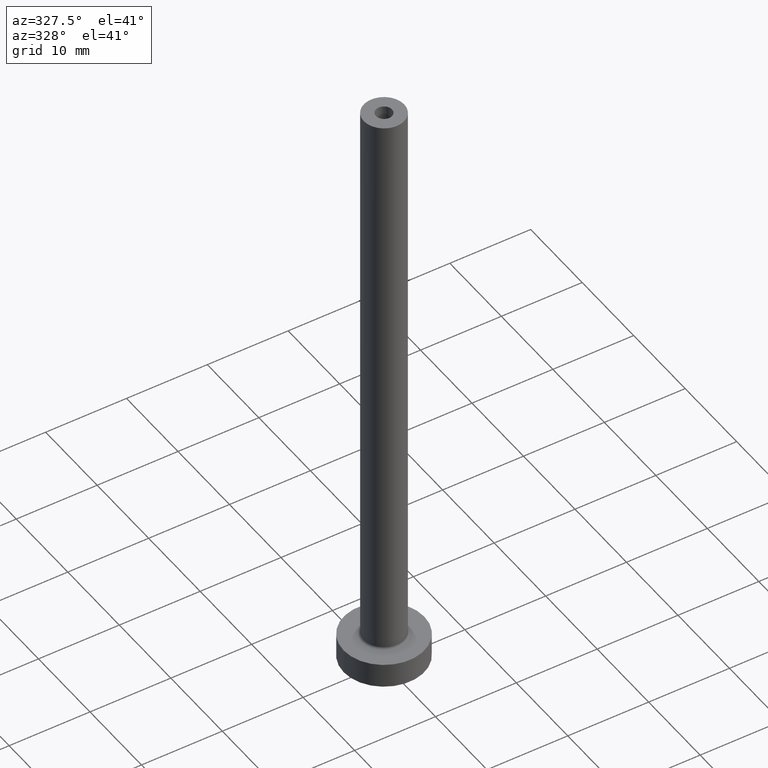
[diagram: clean part render]
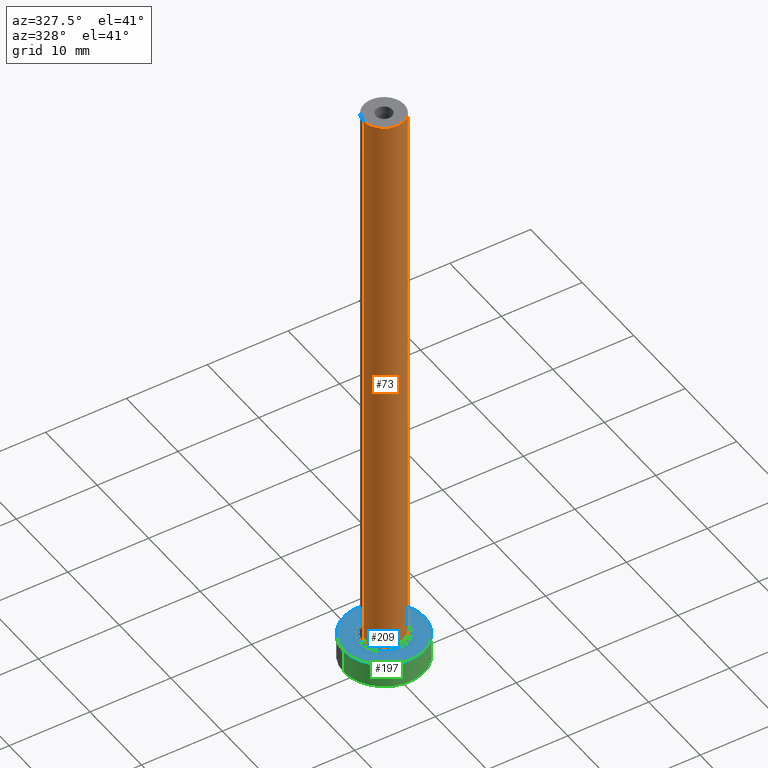
[diagram: same view with three faces highlighted in distinct colors, each labeled with its STEP entity id]
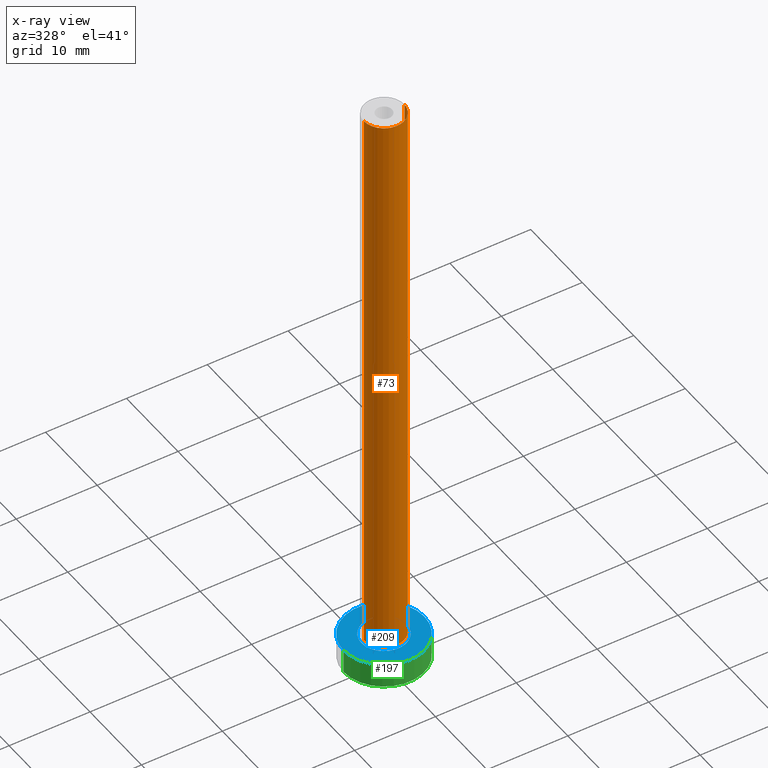
[diagram: x-ray of the same camera — body ghosted, the three highlighted faces saturated]
A machine part, auxiliary view with three faces highlighted in distinct colors.
The next image is the same camera in x-ray (body ghosted, the three faces saturated) — at least one of them is partly hidden behind the body in this view.
Their STEP definitions:

[orange] entity #73 — the highlighted cylindrical surface (edge-blend (fillet) strip) has radius 2.5 mm, axis along (-0, -0, -1).
#6 = CARTESIAN_POINT ( 'NONE',  ( -2.500000000000000000, 0.000000000000000000, 3.299999999999997158 ) ) ;
#7 = VERTEX_POINT ( 'NONE', #435 ) ;
#15 = VERTEX_POINT ( 'NONE', #6 ) ;
#28 = AXIS2_PLACEMENT_3D ( 'NONE', #404, #204, #441 ) ;
#38 = CARTESIAN_POINT ( 'NONE',  ( -2.500000000000000000, 0.000000000000000000, 75.00000000000001421 ) ) ;
#39 = EDGE_CURVE ( 'NONE', #15, #352, #349, .T. ) ;
#44 = VERTEX_POINT ( 'NONE', #443 ) ;
#73 = ADVANCED_FACE ( 'NONE', ( #282 ), #201, .T. ) ;
#74 = CIRCLE ( 'NONE', #28, 2.500000000000000000 ) ;
#82 = AXIS2_PLACEMENT_3D ( 'NONE', #261, #312, #308 ) ;
#101 = DIRECTION ( 'NONE',  ( -0.000000000000000000, -0.000000000000000000, -1.000000000000000000 ) ) ;
#109 = ORIENTED_EDGE ( 'NONE', *, *, #296, .T. ) ;
#131 = LINE ( 'NONE', #406, #331 ) ;
#144 = EDGE_CURVE ( 'NONE', #44, #7, #74, .T. ) ;
#155 = EDGE_LOOP ( 'NONE', ( #195, #330, #109, #215 ) ) ;
#176 = EDGE_CURVE ( 'NONE', #7, #352, #131, .T. ) ;
#195 = ORIENTED_EDGE ( 'NONE', *, *, #176, .F. ) ;
#201 = CYLINDRICAL_SURFACE ( 'NONE', #340, 2.500000000000000000 ) ;
#204 = DIRECTION ( 'NONE',  ( 0.000000000000000000, 0.000000000000000000, 1.000000000000000000 ) ) ;
#215 = ORIENTED_EDGE ( 'NONE', *, *, #39, .T. ) ;
#246 = DIRECTION ( 'NONE',  ( -1.000000000000000000, 0.000000000000000000, 0.000000000000000000 ) ) ;
#261 = CARTESIAN_POINT ( 'NONE',  ( 0.000000000000000000, 0.000000000000000000, 3.299999999999997158 ) ) ;
#282 = FACE_OUTER_BOUND ( 'NONE', #155, .T. ) ;
#283 = DIRECTION ( 'NONE',  ( -0.000000000000000000, -0.000000000000000000, -1.000000000000000000 ) ) ;
#296 = EDGE_CURVE ( 'NONE', #44, #15, #358, .T. ) ;
#308 = DIRECTION ( 'NONE',  ( 1.000000000000000000, 0.000000000000000000, 0.000000000000000000 ) ) ;
#312 = DIRECTION ( 'NONE',  ( 0.000000000000000000, 0.000000000000000000, 1.000000000000000000 ) ) ;
#326 = CARTESIAN_POINT ( 'NONE',  ( 2.500000000000000000, 3.061616997868383141E-16, 3.299999999999997158 ) ) ;
#330 = ORIENTED_EDGE ( 'NONE', *, *, #144, .F. ) ;
#331 = VECTOR ( 'NONE', #457, 1000.000000000000000 ) ;
#340 = AXIS2_PLACEMENT_3D ( 'NONE', #416, #101, #246 ) ;
#349 = CIRCLE ( 'NONE', #82, 2.500000000000000000 ) ;
#352 = VERTEX_POINT ( 'NONE', #326 ) ;
#358 = LINE ( 'NONE', #38, #414 ) ;
#404 = CARTESIAN_POINT ( 'NONE',  ( 0.000000000000000000, 0.000000000000000000, 75.00000000000001421 ) ) ;
#406 = CARTESIAN_POINT ( 'NONE',  ( 2.500000000000000000, 3.061616997868383141E-16, 75.00000000000001421 ) ) ;
#414 = VECTOR ( 'NONE', #283, 1000.000000000000000 ) ;
#416 = CARTESIAN_POINT ( 'NONE',  ( 0.000000000000000000, 0.000000000000000000, 75.00000000000001421 ) ) ;
#435 = CARTESIAN_POINT ( 'NONE',  ( 2.500000000000000000, 3.061616997868383141E-16, 75.00000000000001421 ) ) ;
#441 = DIRECTION ( 'NONE',  ( 1.000000000000000000, 0.000000000000000000, 0.000000000000000000 ) ) ;
#443 = CARTESIAN_POINT ( 'NONE',  ( -2.500000000000000000, 0.000000000000000000, 75.00000000000001421 ) ) ;
#457 = DIRECTION ( 'NONE',  ( -0.000000000000000000, -0.000000000000000000, -1.000000000000000000 ) ) ;

[blue] entity #209 — the highlighted planar face has unit normal (0, 0, 1).
#4 = CARTESIAN_POINT ( 'NONE',  ( 0.000000000000000000, 0.000000000000000000, 3.000000000000000000 ) ) ;
#8 = DIRECTION ( 'NONE',  ( -0.000000000000000000, -0.000000000000000000, -1.000000000000000000 ) ) ;
#14 = ORIENTED_EDGE ( 'NONE', *, *, #30, .T. ) ;
#30 = EDGE_CURVE ( 'NONE', #228, #45, #106, .T. ) ;
#34 = ORIENTED_EDGE ( 'NONE', *, *, #375, .T. ) ;
#37 = FACE_BOUND ( 'NONE', #365, .T. ) ;
#45 = VERTEX_POINT ( 'NONE', #409 ) ;
#46 = EDGE_LOOP ( 'NONE', ( #14, #34 ) ) ;
#48 = AXIS2_PLACEMENT_3D ( 'NONE', #71, #249, #354 ) ;
#71 = CARTESIAN_POINT ( 'NONE',  ( 0.000000000000000000, 0.000000000000000000, 3.000000000000000000 ) ) ;
#84 = DIRECTION ( 'NONE',  ( 1.000000000000000000, 0.000000000000000000, 0.000000000000000000 ) ) ;
#106 = CIRCLE ( 'NONE', #227, 5.000000000000000000 ) ;
#107 = CARTESIAN_POINT ( 'NONE',  ( 0.000000000000000000, 0.000000000000000000, 3.000000000000000000 ) ) ;
#117 = DIRECTION ( 'NONE',  ( 1.000000000000000000, 0.000000000000000000, 0.000000000000000000 ) ) ;
#119 = DIRECTION ( 'NONE',  ( 1.000000000000000000, 0.000000000000000000, 0.000000000000000000 ) ) ;
#137 = CIRCLE ( 'NONE', #447, 2.799999999999999822 ) ;
#153 = CARTESIAN_POINT ( 'NONE',  ( 0.000000000000000000, 0.000000000000000000, 3.000000000000000000 ) ) ;
#172 = CIRCLE ( 'NONE', #363, 2.799999999999999822 ) ;
#182 = DIRECTION ( 'NONE',  ( -0.000000000000000000, -0.000000000000000000, -1.000000000000000000 ) ) ;
#192 = EDGE_CURVE ( 'NONE', #301, #303, #137, .T. ) ;
#209 = ADVANCED_FACE ( 'NONE', ( #37, #419 ), #216, .T. ) ;
#216 = PLANE ( 'NONE',  #48 ) ;
#220 = AXIS2_PLACEMENT_3D ( 'NONE', #395, #360, #84 ) ;
#227 = AXIS2_PLACEMENT_3D ( 'NONE', #153, #295, #117 ) ;
#228 = VERTEX_POINT ( 'NONE', #287 ) ;
#249 = DIRECTION ( 'NONE',  ( 0.000000000000000000, 0.000000000000000000, 1.000000000000000000 ) ) ;
#254 = ORIENTED_EDGE ( 'NONE', *, *, #359, .T. ) ;
#269 = ORIENTED_EDGE ( 'NONE', *, *, #192, .T. ) ;
#287 = CARTESIAN_POINT ( 'NONE',  ( -5.000000000000000000, 0.000000000000000000, 3.000000000000000000 ) ) ;
#288 = DIRECTION ( 'NONE',  ( 1.000000000000000000, 0.000000000000000000, 0.000000000000000000 ) ) ;
#295 = DIRECTION ( 'NONE',  ( 0.000000000000000000, 0.000000000000000000, 1.000000000000000000 ) ) ;
#301 = VERTEX_POINT ( 'NONE', #316 ) ;
#303 = VERTEX_POINT ( 'NONE', #452 ) ;
#316 = CARTESIAN_POINT ( 'NONE',  ( -2.799999999999999822, 3.429011037612589276E-16, 2.999999999999998668 ) ) ;
#354 = DIRECTION ( 'NONE',  ( 1.000000000000000000, 0.000000000000000000, -0.000000000000000000 ) ) ;
#359 = EDGE_CURVE ( 'NONE', #303, #301, #172, .T. ) ;
#360 = DIRECTION ( 'NONE',  ( 0.000000000000000000, 0.000000000000000000, 1.000000000000000000 ) ) ;
#363 = AXIS2_PLACEMENT_3D ( 'NONE', #4, #8, #119 ) ;
#365 = EDGE_LOOP ( 'NONE', ( #254, #269 ) ) ;
#375 = EDGE_CURVE ( 'NONE', #45, #228, #405, .T. ) ;
#395 = CARTESIAN_POINT ( 'NONE',  ( 0.000000000000000000, 0.000000000000000000, 3.000000000000000000 ) ) ;
#405 = CIRCLE ( 'NONE', #220, 5.000000000000000000 ) ;
#409 = CARTESIAN_POINT ( 'NONE',  ( 5.000000000000000000, 6.123233995736766282E-16, 3.000000000000000000 ) ) ;
#419 = FACE_OUTER_BOUND ( 'NONE', #46, .T. ) ;
#447 = AXIS2_PLACEMENT_3D ( 'NONE', #107, #182, #288 ) ;
#452 = CARTESIAN_POINT ( 'NONE',  ( 2.799999999999999822, 0.000000000000000000, 2.999999999999998668 ) ) ;

[green] entity #197 — the highlighted cylindrical surface (partial cylindrical patch) has radius 5 mm, axis along (-0, -0, -1).
#9 = VERTEX_POINT ( 'NONE', #10 ) ;
#10 = CARTESIAN_POINT ( 'NONE',  ( 5.000000000000000000, 6.123233995736766282E-16, 0.000000000000000000 ) ) ;
#30 = EDGE_CURVE ( 'NONE', #228, #45, #106, .T. ) ;
#33 = CARTESIAN_POINT ( 'NONE',  ( 0.000000000000000000, 0.000000000000000000, 3.000000000000000000 ) ) ;
#43 = CARTESIAN_POINT ( 'NONE',  ( -5.000000000000000000, 0.000000000000000000, 0.000000000000000000 ) ) ;
#45 = VERTEX_POINT ( 'NONE', #409 ) ;
#67 = AXIS2_PLACEMENT_3D ( 'NONE', #188, #294, #291 ) ;
#79 = EDGE_CURVE ( 'NONE', #228, #391, #314, .T. ) ;
#87 = ORIENTED_EDGE ( 'NONE', *, *, #30, .F. ) ;
#90 = VECTOR ( 'NONE', #98, 1000.000000000000000 ) ;
#98 = DIRECTION ( 'NONE',  ( -0.000000000000000000, -0.000000000000000000, -1.000000000000000000 ) ) ;
#106 = CIRCLE ( 'NONE', #227, 5.000000000000000000 ) ;
#117 = DIRECTION ( 'NONE',  ( 1.000000000000000000, 0.000000000000000000, 0.000000000000000000 ) ) ;
#153 = CARTESIAN_POINT ( 'NONE',  ( 0.000000000000000000, 0.000000000000000000, 3.000000000000000000 ) ) ;
#175 = DIRECTION ( 'NONE',  ( -1.000000000000000000, 0.000000000000000000, 0.000000000000000000 ) ) ;
#178 = CYLINDRICAL_SURFACE ( 'NONE', #292, 5.000000000000000000 ) ;
#183 = DIRECTION ( 'NONE',  ( -0.000000000000000000, -0.000000000000000000, -1.000000000000000000 ) ) ;
#188 = CARTESIAN_POINT ( 'NONE',  ( 0.000000000000000000, 0.000000000000000000, 0.000000000000000000 ) ) ;
#197 = ADVANCED_FACE ( 'NONE', ( #255 ), #178, .T. ) ;
#212 = DIRECTION ( 'NONE',  ( -0.000000000000000000, -0.000000000000000000, -1.000000000000000000 ) ) ;
#214 = LINE ( 'NONE', #351, #307 ) ;
#227 = AXIS2_PLACEMENT_3D ( 'NONE', #153, #295, #117 ) ;
#228 = VERTEX_POINT ( 'NONE', #287 ) ;
#255 = FACE_OUTER_BOUND ( 'NONE', #364, .T. ) ;
#267 = ORIENTED_EDGE ( 'NONE', *, *, #325, .F. ) ;
#273 = CIRCLE ( 'NONE', #67, 5.000000000000000000 ) ;
#287 = CARTESIAN_POINT ( 'NONE',  ( -5.000000000000000000, 0.000000000000000000, 3.000000000000000000 ) ) ;
#291 = DIRECTION ( 'NONE',  ( 1.000000000000000000, 0.000000000000000000, 0.000000000000000000 ) ) ;
#292 = AXIS2_PLACEMENT_3D ( 'NONE', #33, #212, #175 ) ;
#294 = DIRECTION ( 'NONE',  ( 0.000000000000000000, 0.000000000000000000, 1.000000000000000000 ) ) ;
#295 = DIRECTION ( 'NONE',  ( 0.000000000000000000, 0.000000000000000000, 1.000000000000000000 ) ) ;
#307 = VECTOR ( 'NONE', #183, 1000.000000000000000 ) ;
#314 = LINE ( 'NONE', #451, #90 ) ;
#325 = EDGE_CURVE ( 'NONE', #45, #9, #214, .T. ) ;
#332 = ORIENTED_EDGE ( 'NONE', *, *, #415, .T. ) ;
#351 = CARTESIAN_POINT ( 'NONE',  ( 5.000000000000000000, 6.123233995736766282E-16, 3.000000000000000000 ) ) ;
#364 = EDGE_LOOP ( 'NONE', ( #267, #87, #401, #332 ) ) ;
#391 = VERTEX_POINT ( 'NONE', #43 ) ;
#401 = ORIENTED_EDGE ( 'NONE', *, *, #79, .T. ) ;
#409 = CARTESIAN_POINT ( 'NONE',  ( 5.000000000000000000, 6.123233995736766282E-16, 3.000000000000000000 ) ) ;
#415 = EDGE_CURVE ( 'NONE', #391, #9, #273, .T. ) ;
#451 = CARTESIAN_POINT ( 'NONE',  ( -5.000000000000000000, 0.000000000000000000, 3.000000000000000000 ) ) ;